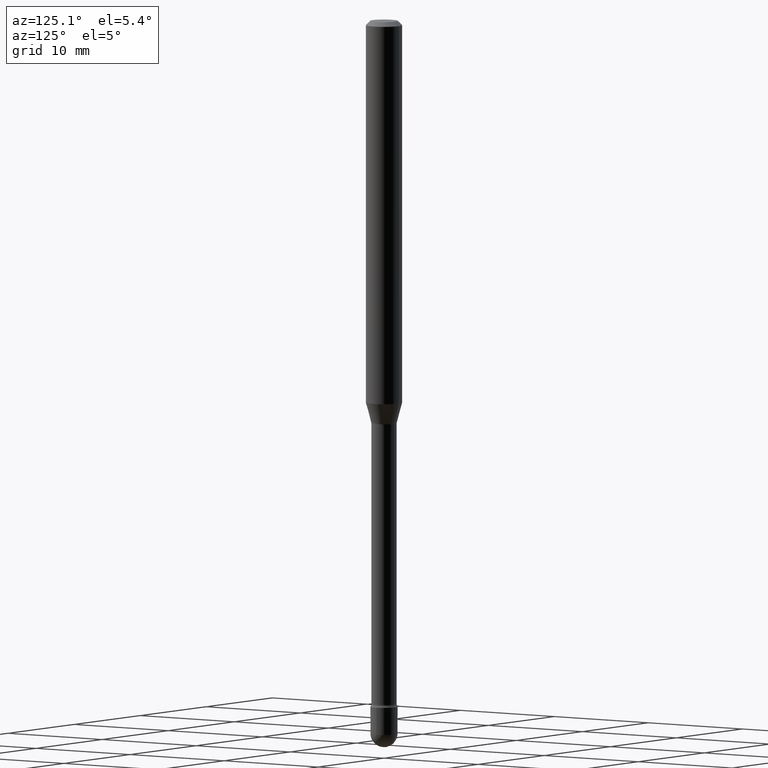
[diagram: clean part render]
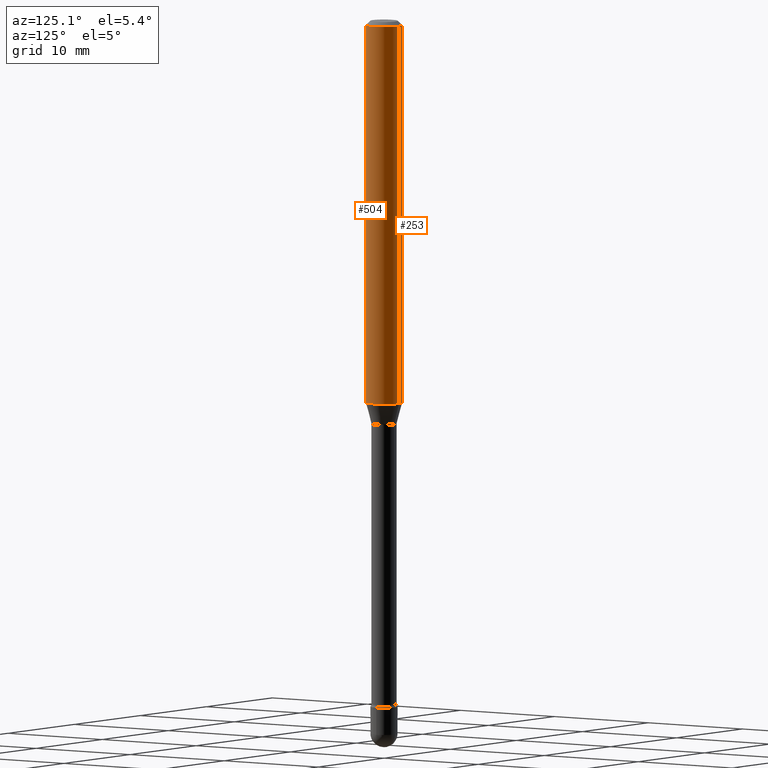
[diagram: same view with one multi-face feature highlighted, each face labeled with its STEP entity id]
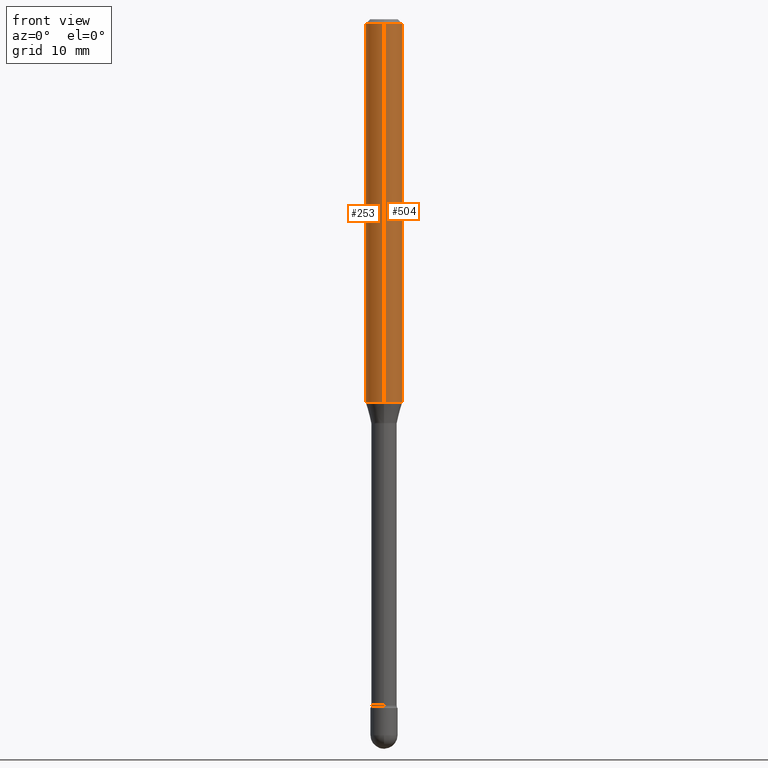
[diagram: same view with one multi-face feature highlighted, each face labeled with its STEP entity id]
A machine part, auxiliary view. The highlighted faces form ONE feature: a constant-radius fillet chain: 2 tangent blend faces with common blend radius 1.5875 mm. The faces share edges in the B-rep.
A second angle (front view) of the same feature is appended — it is thin or edge-on in the first view.
Their STEP definitions:
[1] entity #504 (Cylinder):
#29 = AXIS2_PLACEMENT_3D ( 'NONE', #339, #503, #171 ) ;
#30 = EDGE_LOOP ( 'NONE', ( #381, #498, #269, #163 ) ) ;
#49 = CARTESIAN_POINT ( 'NONE',  ( 4.440892098500948609E-16, 0.06249999999999544115, -1.313837444817705702 ) ) ;
#69 = AXIS2_PLACEMENT_3D ( 'NONE', #409, #374, #549 ) ;
#72 = VERTEX_POINT ( 'NONE', #392 ) ;
#84 = CYLINDRICAL_SURFACE ( 'NONE', #415, 0.06250000000000000000 ) ;
#113 = CARTESIAN_POINT ( 'NONE',  ( 4.440892098500949595E-16, 0.06249999999999995837, -0.01500000000000030129 ) ) ;
#133 = DIRECTION ( 'NONE',  ( -6.982962677686265922E-15, -1.000000000000000000, 3.491522151244509322E-15 ) ) ;
#140 = CIRCLE ( 'NONE', #69, 0.06250000000000000000 ) ;
#145 = VERTEX_POINT ( 'NONE', #563 ) ;
#163 = ORIENTED_EDGE ( 'NONE', *, *, #553, .F. ) ;
#165 = VERTEX_POINT ( 'NONE', #113 ) ;
#171 = DIRECTION ( 'NONE',  ( -6.982962677686265922E-15, -1.000000000000000000, 4.370956789862821150E-15 ) ) ;
#205 = VECTOR ( 'NONE', #267, 39.37007874015748143 ) ;
#240 = EDGE_CURVE ( 'NONE', #145, #165, #140, .T. ) ;
#257 = CARTESIAN_POINT ( 'NONE',  ( -4.364351673553916201E-16, -0.06250000000000000000, 6.962935333440278959E-16 ) ) ;
#262 = CARTESIAN_POINT ( 'NONE',  ( -1.169113584055446105E-44, 1.669184350826100908E-30, 4.780733988912460139E-16 ) ) ;
#267 = DIRECTION ( 'NONE',  ( -2.445440307037586053E-29, 3.491522151244508533E-15, 1.000000000000000000 ) ) ;
#269 = ORIENTED_EDGE ( 'NONE', *, *, #240, .F. ) ;
#284 = CIRCLE ( 'NONE', #29, 0.06250000000000000000 ) ;
#308 = DIRECTION ( 'NONE',  ( -2.445440307037586053E-29, 3.491522151244508533E-15, 1.000000000000000000 ) ) ;
#339 = CARTESIAN_POINT ( 'NONE',  ( 3.212911044452487159E-29, -4.587292541715501865E-15, -1.313837444817705258 ) ) ;
#348 = FACE_OUTER_BOUND ( 'NONE', #30, .T. ) ;
#374 = DIRECTION ( 'NONE',  ( -2.445440307037586333E-29, 3.491522151244508533E-15, 1.000000000000000000 ) ) ;
#381 = ORIENTED_EDGE ( 'NONE', *, *, #500, .T. ) ;
#382 = VERTEX_POINT ( 'NONE', #49 ) ;
#392 = CARTESIAN_POINT ( 'NONE',  ( -4.364351673553592768E-16, -0.06250000000000455191, -1.313837444817705036 ) ) ;
#409 = CARTESIAN_POINT ( 'NONE',  ( 3.668160460556399609E-31, -5.237283226866791643E-17, -0.01500000000000008271 ) ) ;
#415 = AXIS2_PLACEMENT_3D ( 'NONE', #262, #485, #133 ) ;
#430 = LINE ( 'NONE', #257, #457 ) ;
#457 = VECTOR ( 'NONE', #308, 39.37007874015748143 ) ;
#475 = CARTESIAN_POINT ( 'NONE',  ( 4.440892098500625669E-16, 0.06250000000000000000, 2.598532644384642799E-16 ) ) ;
#485 = DIRECTION ( 'NONE',  ( -2.445440307037586333E-29, 3.491522151244508533E-15, 1.000000000000000000 ) ) ;
#498 = ORIENTED_EDGE ( 'NONE', *, *, #547, .T. ) ;
#500 = EDGE_CURVE ( 'NONE', #72, #382, #284, .T. ) ;
#503 = DIRECTION ( 'NONE',  ( -2.445440307037586333E-29, 3.491522151244508533E-15, 1.000000000000000000 ) ) ;
#504 = ADVANCED_FACE ( 'NONE', ( #348 ), #84, .T. ) ;
#547 = EDGE_CURVE ( 'NONE', #382, #165, #559, .T. ) ;
#549 = DIRECTION ( 'NONE',  ( -6.982962677686265922E-15, -1.000000000000000000, 3.483106191921935554E-15 ) ) ;
#553 = EDGE_CURVE ( 'NONE', #72, #145, #430, .T. ) ;
#559 = LINE ( 'NONE', #475, #205 ) ;
#563 = CARTESIAN_POINT ( 'NONE',  ( -4.364351673553912750E-16, -0.06250000000000005551, -0.01499999999999986587 ) ) ;
[2] entity #253 (Cylinder):
#15 = DIRECTION ( 'NONE',  ( -2.445440307037586333E-29, 3.491522151244508533E-15, 1.000000000000000000 ) ) ;
#31 = CARTESIAN_POINT ( 'NONE',  ( 3.668160460556399609E-31, -5.237283226866791643E-17, -0.01500000000000008271 ) ) ;
#45 = FACE_OUTER_BOUND ( 'NONE', #541, .T. ) ;
#49 = CARTESIAN_POINT ( 'NONE',  ( 4.440892098500948609E-16, 0.06249999999999544115, -1.313837444817705702 ) ) ;
#58 = CARTESIAN_POINT ( 'NONE',  ( 3.212911044452487159E-29, -4.587292541715501865E-15, -1.313837444817705258 ) ) ;
#72 = VERTEX_POINT ( 'NONE', #392 ) ;
#96 = DIRECTION ( 'NONE',  ( -6.982962677686265922E-15, -1.000000000000000000, 4.370956789862821150E-15 ) ) ;
#105 = EDGE_CURVE ( 'NONE', #382, #72, #511, .T. ) ;
#106 = AXIS2_PLACEMENT_3D ( 'NONE', #305, #532, #219 ) ;
#111 = ORIENTED_EDGE ( 'NONE', *, *, #547, .F. ) ;
#113 = CARTESIAN_POINT ( 'NONE',  ( 4.440892098500949595E-16, 0.06249999999999995837, -0.01500000000000030129 ) ) ;
#142 = CIRCLE ( 'NONE', #534, 0.06250000000000000000 ) ;
#145 = VERTEX_POINT ( 'NONE', #563 ) ;
#165 = VERTEX_POINT ( 'NONE', #113 ) ;
#205 = VECTOR ( 'NONE', #267, 39.37007874015748143 ) ;
#206 = DIRECTION ( 'NONE',  ( -2.445440307037586333E-29, 3.491522151244508533E-15, 1.000000000000000000 ) ) ;
#214 = DIRECTION ( 'NONE',  ( -6.982962677686265922E-15, -1.000000000000000000, 3.483106191921935554E-15 ) ) ;
#219 = DIRECTION ( 'NONE',  ( -6.982962677686265922E-15, -1.000000000000000000, 3.491522151244509322E-15 ) ) ;
#253 = ADVANCED_FACE ( 'NONE', ( #45 ), #482, .T. ) ;
#257 = CARTESIAN_POINT ( 'NONE',  ( -4.364351673553916201E-16, -0.06250000000000000000, 6.962935333440278959E-16 ) ) ;
#260 = ORIENTED_EDGE ( 'NONE', *, *, #105, .T. ) ;
#267 = DIRECTION ( 'NONE',  ( -2.445440307037586053E-29, 3.491522151244508533E-15, 1.000000000000000000 ) ) ;
#305 = CARTESIAN_POINT ( 'NONE',  ( -1.169113584055446105E-44, 1.669184350826100908E-30, 4.780733988912460139E-16 ) ) ;
#308 = DIRECTION ( 'NONE',  ( -2.445440307037586053E-29, 3.491522151244508533E-15, 1.000000000000000000 ) ) ;
#382 = VERTEX_POINT ( 'NONE', #49 ) ;
#392 = CARTESIAN_POINT ( 'NONE',  ( -4.364351673553592768E-16, -0.06250000000000455191, -1.313837444817705036 ) ) ;
#400 = AXIS2_PLACEMENT_3D ( 'NONE', #58, #15, #96 ) ;
#429 = ORIENTED_EDGE ( 'NONE', *, *, #546, .F. ) ;
#430 = LINE ( 'NONE', #257, #457 ) ;
#457 = VECTOR ( 'NONE', #308, 39.37007874015748143 ) ;
#475 = CARTESIAN_POINT ( 'NONE',  ( 4.440892098500625669E-16, 0.06250000000000000000, 2.598532644384642799E-16 ) ) ;
#482 = CYLINDRICAL_SURFACE ( 'NONE', #106, 0.06250000000000000000 ) ;
#487 = ORIENTED_EDGE ( 'NONE', *, *, #553, .T. ) ;
#511 = CIRCLE ( 'NONE', #400, 0.06250000000000000000 ) ;
#532 = DIRECTION ( 'NONE',  ( -2.445440307037586333E-29, 3.491522151244508533E-15, 1.000000000000000000 ) ) ;
#534 = AXIS2_PLACEMENT_3D ( 'NONE', #31, #206, #214 ) ;
#541 = EDGE_LOOP ( 'NONE', ( #111, #260, #487, #429 ) ) ;
#546 = EDGE_CURVE ( 'NONE', #165, #145, #142, .T. ) ;
#547 = EDGE_CURVE ( 'NONE', #382, #165, #559, .T. ) ;
#553 = EDGE_CURVE ( 'NONE', #72, #145, #430, .T. ) ;
#559 = LINE ( 'NONE', #475, #205 ) ;
#563 = CARTESIAN_POINT ( 'NONE',  ( -4.364351673553912750E-16, -0.06250000000000005551, -0.01499999999999986587 ) ) ;